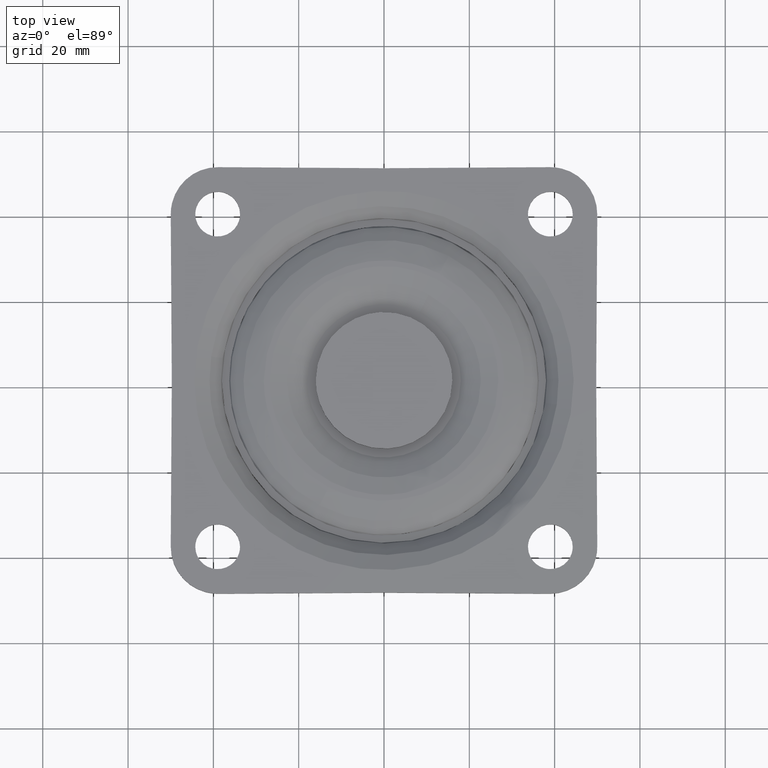
[diagram: clean part render]
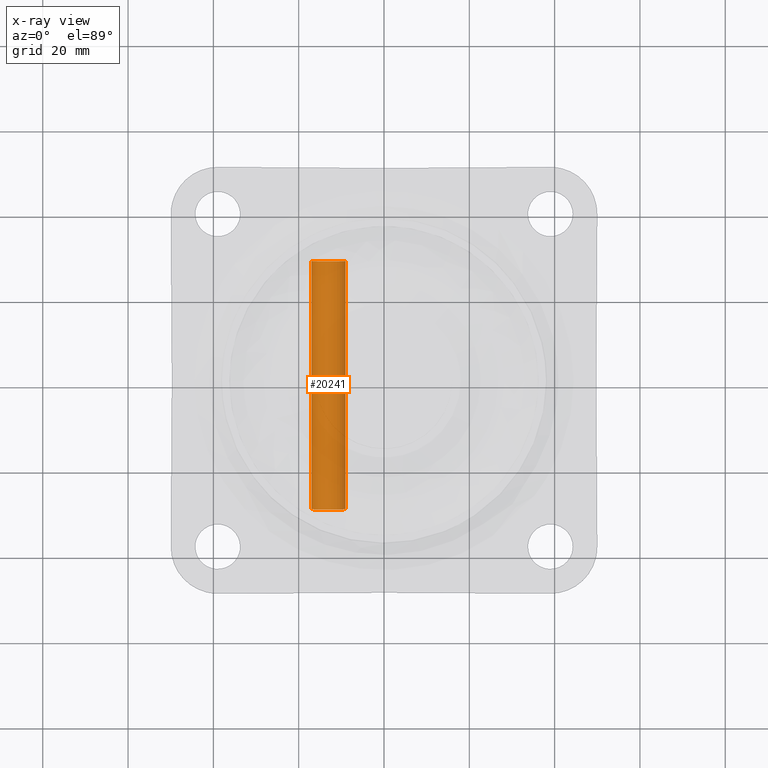
[diagram: x-ray — body ghosted, one internal face saturated and labeled with its STEP entity id]
A machine part, top view, then the same camera in x-ray: the body is ghosted and one INTERNAL B-rep face — a face not visible from any outside direction — is saturated and labeled: STEP entity #20241.
In plain terms, the highlighted face is a freeform B-spline surface patch.
Its self-contained STEP definition (entity closure, byte-faithful):
#20108=CARTESIAN_POINT('',(-13.000034000000101,-29.100005999999901,-68.499990999999895));
#20109=VERTEX_POINT('',#20108);
#20110=CARTESIAN_POINT('',(-16.992573193684962,-29.100005999999929,-64.744185158182006));
#20111=VERTEX_POINT('',#20110);
#20112=CARTESIAN_POINT('',(-13.000034000000101,-29.100005999999901,-68.499990999999895));
#20113=CARTESIAN_POINT('',(-16.762858267582573,-29.100005999999905,-68.499990999999895));
#20114=CARTESIAN_POINT('',(-16.992573193684958,-29.100005999999905,-64.744185158182006));
#20122=(BOUNDED_CURVE()B_SPLINE_CURVE(2,(#20112,#20113,#20114),.UNSPECIFIED.,.F.,.U.)B_SPLINE_CURVE_WITH_KNOTS((3,3),(0.500000000000000,0.739332962240123),.UNSPECIFIED.)CURVE()GEOMETRIC_REPRESENTATION_ITEM()RATIONAL_B_SPLINE_CURVE((1.0,0.719603993285327,0.976072041669248))REPRESENTATION_ITEM(''));
#20123=EDGE_CURVE('',#20109,#20111,#20122,.T.);
#20125=CARTESIAN_POINT('',(-9.007494806315243,-29.100005999999929,-64.255796841817784));
#20126=VERTEX_POINT('',#20125);
#20127=CARTESIAN_POINT('',(-9.007494806315243,-29.100005999999905,-64.255796841817755));
#20128=CARTESIAN_POINT('',(-9.000034000000101,-29.100005999999908,-64.377779946784131));
#20129=CARTESIAN_POINT('',(-9.000034000000101,-29.100005999999901,-64.499990999999895));
#20130=CARTESIAN_POINT('',(-9.000034000000101,-29.100005999999897,-68.499990999999895));
#20131=CARTESIAN_POINT('',(-13.000034000000101,-29.100005999999901,-68.499990999999895));
#20139=(BOUNDED_CURVE()B_SPLINE_CURVE(2,(#20127,#20128,#20129,#20130,#20131),.UNSPECIFIED.,.F.,.U.)B_SPLINE_CURVE_WITH_KNOTS((3,2,3),(0.239332962240123,0.250000000000000,0.500000000000000),.UNSPECIFIED.)CURVE()GEOMETRIC_REPRESENTATION_ITEM()RATIONAL_B_SPLINE_CURVE((0.976072041669247,0.987502787901220,1.0,0.707106781186548,1.0))REPRESENTATION_ITEM(''));
#20140=EDGE_CURVE('',#20126,#20109,#20139,.T.);
#20175=CARTESIAN_POINT('',(-9.007494806312634,-30.555006124999899,-64.255796841860473));
#20176=CARTESIAN_POINT('',(-8.763300648173207,-30.555006124999906,-68.248336035547950));
#20177=CARTESIAN_POINT('',(-12.755839841860670,-30.555006124999899,-68.492530193687358));
#20178=CARTESIAN_POINT('',(-16.748379035548144,-30.555006124999906,-68.736724351826780));
#20179=CARTESIAN_POINT('',(-16.992573193687569,-30.555006124999899,-64.744185158139317));
#20180=CARTESIAN_POINT('',(-9.007494806312634,30.591374128125000,-64.255796841860473));
#20181=CARTESIAN_POINT('',(-8.763300648173207,30.591374128125004,-68.248336035547950));
#20182=CARTESIAN_POINT('',(-12.755839841860670,30.591374128125000,-68.492530193687358));
#20183=CARTESIAN_POINT('',(-16.748379035548144,30.591374128125004,-68.736724351826780));
#20184=CARTESIAN_POINT('',(-16.992573193687569,30.591374128125000,-64.744185158139317));
#20192=(BOUNDED_SURFACE()B_SPLINE_SURFACE(2,1,((#20175,#20180),(#20176,#20181),(#20177,#20182),(#20178,#20183),(#20179,#20184)),.UNSPECIFIED.,.F.,.F.,.U.)B_SPLINE_SURFACE_WITH_KNOTS((3,2,3),(2,2),(0.0,6.627416997969522,13.254833995939050),(0.0,61.146380253124910),.UNSPECIFIED.)GEOMETRIC_REPRESENTATION_ITEM()RATIONAL_B_SPLINE_SURFACE(((1.0,1.0),(0.707106781186548,0.707106781186548),(1.0,1.0),(0.707106781186548,0.707106781186548),(1.0,1.0)))REPRESENTATION_ITEM('')SURFACE());
#20193=ORIENTED_EDGE('',*,*,#20140,.T.);
#20194=ORIENTED_EDGE('',*,*,#20123,.T.);
#20195=CARTESIAN_POINT('',(-16.992573193684962,29.099999000000000,-64.744185158182006));
#20196=VERTEX_POINT('',#20195);
#20197=CARTESIAN_POINT('',(-16.992573193684962,-29.100005999999901,-64.744185158182006));
#20198=CARTESIAN_POINT('',(-16.992573193684962,29.099999000000000,-64.744185158182006));
#20199=QUASI_UNIFORM_CURVE('',1,(#20197,#20198),.UNSPECIFIED.,.F.,.U.);
#20200=EDGE_CURVE('',#20111,#20196,#20199,.T.);
#20201=ORIENTED_EDGE('',*,*,#20200,.T.);
#20202=CARTESIAN_POINT('',(-13.000034000000101,29.099999000000000,-68.499990999999895));
#20203=VERTEX_POINT('',#20202);
#20204=CARTESIAN_POINT('',(-13.000034000000101,29.099999000000000,-68.499990999999895));
#20205=CARTESIAN_POINT('',(-16.762858267582573,29.099999000000007,-68.499990999999895));
#20206=CARTESIAN_POINT('',(-16.992573193684958,29.099999000000000,-64.744185158182006));
#20214=(BOUNDED_CURVE()B_SPLINE_CURVE(2,(#20204,#20205,#20206),.UNSPECIFIED.,.F.,.U.)B_SPLINE_CURVE_WITH_KNOTS((3,3),(0.500000000000000,0.739332962240123),.UNSPECIFIED.)CURVE()GEOMETRIC_REPRESENTATION_ITEM()RATIONAL_B_SPLINE_CURVE((1.0,0.719603993285327,0.976072041669248))REPRESENTATION_ITEM(''));
#20215=EDGE_CURVE('',#20203,#20196,#20214,.T.);
#20216=ORIENTED_EDGE('',*,*,#20215,.F.);
#20217=CARTESIAN_POINT('',(-9.007494806315245,29.099999000000000,-64.255796841817784));
#20218=VERTEX_POINT('',#20217);
#20219=CARTESIAN_POINT('',(-9.007494806315245,29.099999000000000,-64.255796841817798));
#20220=CARTESIAN_POINT('',(-9.000034000000101,29.099998999999997,-64.377779946784131));
#20221=CARTESIAN_POINT('',(-9.000034000000101,29.099999000000000,-64.499990999999895));
#20222=CARTESIAN_POINT('',(-9.000034000000101,29.099999000000011,-68.499990999999895));
#20223=CARTESIAN_POINT('',(-13.000034000000101,29.099999000000000,-68.499990999999895));
#20231=(BOUNDED_CURVE()B_SPLINE_CURVE(2,(#20219,#20220,#20221,#20222,#20223),.UNSPECIFIED.,.F.,.U.)B_SPLINE_CURVE_WITH_KNOTS((3,2,3),(0.239332962240123,0.250000000000000,0.500000000000000),.UNSPECIFIED.)CURVE()GEOMETRIC_REPRESENTATION_ITEM()RATIONAL_B_SPLINE_CURVE((0.976072041669247,0.987502787901220,1.0,0.707106781186548,1.0))REPRESENTATION_ITEM(''));
#20232=EDGE_CURVE('',#20218,#20203,#20231,.T.);
#20233=ORIENTED_EDGE('',*,*,#20232,.F.);
#20234=CARTESIAN_POINT('',(-9.007494806315243,-29.100005999999901,-64.255796841817769));
#20235=CARTESIAN_POINT('',(-9.007494806315245,29.099999000000000,-64.255796841817784));
#20236=QUASI_UNIFORM_CURVE('',1,(#20234,#20235),.UNSPECIFIED.,.F.,.U.);
#20237=EDGE_CURVE('',#20126,#20218,#20236,.T.);
#20238=ORIENTED_EDGE('',*,*,#20237,.F.);
#20239=EDGE_LOOP('',(#20193,#20194,#20201,#20216,#20233,#20238));
#20240=FACE_OUTER_BOUND('',#20239,.T.);
#20241=ADVANCED_FACE('',(#20240),#20192,.T.);